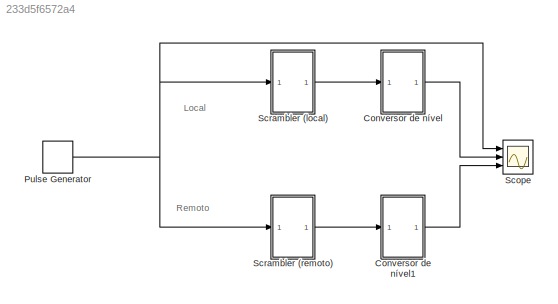
MODEL slx_233d5f6572a4
KIND model
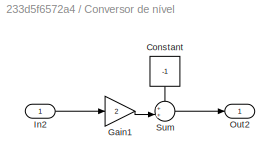
BLOCK [SubSystem] Conversor de nível
  FunctionWithSeparateData = off
  MaskHideContents = off
  MinAlgLoopOccurrences = off
  Opaque = off
  Ports = [1, 1]
  PropExecContextOutsideSubsystem = off
  RTWSystemCode = Auto
  RequestExecContextInheritance = off
BLOCK [Constant] Conversor de nível/Constant
  Value = -1
BLOCK [Gain] Conversor de nível/Gain1
  Gain = 2
  OutDataTypeStr = Inherit: Inherit via internal rule
  ParamDataTypeStr = Inherit: Inherit via internal rule
  SaturateOnIntegerOverflow = off
BLOCK [Inport] Conversor de nível/In2
  IconDisplay = Port number
BLOCK [Outport] Conversor de nível/Out2
  IconDisplay = Port number
BLOCK [Sum] Conversor de nível/Sum
  IconShape = round
  InputSameDT = off
  Inputs = ++|
  OutDataTypeStr = Inherit: Inherit via internal rule
  Ports = [2, 1]
  SaturateOnIntegerOverflow = off
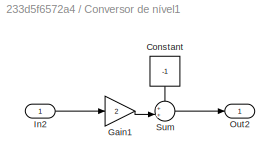
BLOCK [SubSystem] Conversor de nível1
  FunctionWithSeparateData = off
  MaskHideContents = off
  MinAlgLoopOccurrences = off
  Opaque = off
  Ports = [1, 1]
  PropExecContextOutsideSubsystem = off
  RTWSystemCode = Auto
  RequestExecContextInheritance = off
BLOCK [Constant] Conversor de nível1/Constant
  Value = -1
BLOCK [Gain] Conversor de nível1/Gain1
  Gain = 2
  OutDataTypeStr = Inherit: Inherit via internal rule
  ParamDataTypeStr = Inherit: Inherit via internal rule
  SaturateOnIntegerOverflow = off
BLOCK [Inport] Conversor de nível1/In2
  IconDisplay = Port number
BLOCK [Outport] Conversor de nível1/Out2
  IconDisplay = Port number
BLOCK [Sum] Conversor de nível1/Sum
  IconShape = round
  InputSameDT = off
  Inputs = ++|
  OutDataTypeStr = Inherit: Inherit via internal rule
  Ports = [2, 1]
  SaturateOnIntegerOverflow = off
BLOCK [DiscretePulseGenerator] Pulse Generator
  Period = 2*T
  Ports = [0, 1]
  PulseType = Time based
  PulseWidth = 50
  SampleTime = St
BLOCK [Scope] Scope
  DataFormat = StructureWithTime
  Floating = off
  NumInputPorts = 3
  Ports = [3]
  SampleTime = 0
  ShowLegends = off
  YMax = 5~5~5
  YMin = -5~-5~-5
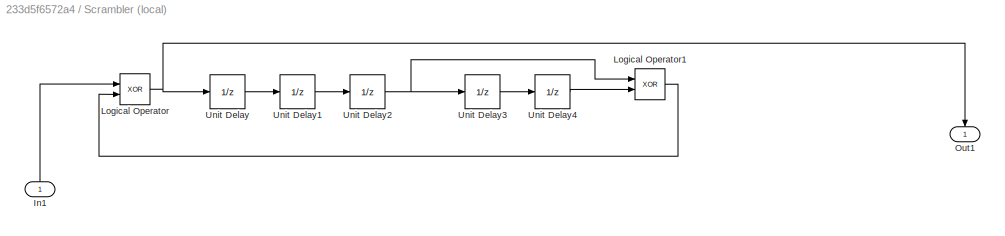
BLOCK [SubSystem] Scrambler (local)
  FunctionWithSeparateData = off
  MaskHideContents = off
  MinAlgLoopOccurrences = off
  Opaque = off
  Ports = [1, 1]
  PropExecContextOutsideSubsystem = off
  RTWSystemCode = Auto
  RequestExecContextInheritance = off
BLOCK [Inport] Scrambler (local)/In1
  IconDisplay = Port number
BLOCK [Logic] Scrambler (local)/Logical Operator
  AllPortsSameDT = off
  Operator = XOR
  OutDataTypeStr = fixdt(1,16)
  Ports = [2, 1]
BLOCK [Logic] Scrambler (local)/Logical Operator1
  AllPortsSameDT = off
  Operator = XOR
  OutDataTypeStr = boolean
  Ports = [2, 1]
BLOCK [Outport] Scrambler (local)/Out1
  IconDisplay = Port number
BLOCK [UnitDelay] Scrambler (local)/Unit Delay
  InputProcessing = Elements as channels (sample based)
  SampleTime = -1
BLOCK [UnitDelay] Scrambler (local)/Unit Delay1
  InputProcessing = Elements as channels (sample based)
  SampleTime = -1
BLOCK [UnitDelay] Scrambler (local)/Unit Delay2
  InputProcessing = Elements as channels (sample based)
  SampleTime = -1
BLOCK [UnitDelay] Scrambler (local)/Unit Delay3
  InputProcessing = Elements as channels (sample based)
  SampleTime = -1
BLOCK [UnitDelay] Scrambler (local)/Unit Delay4
  InputProcessing = Elements as channels (sample based)
  SampleTime = -1
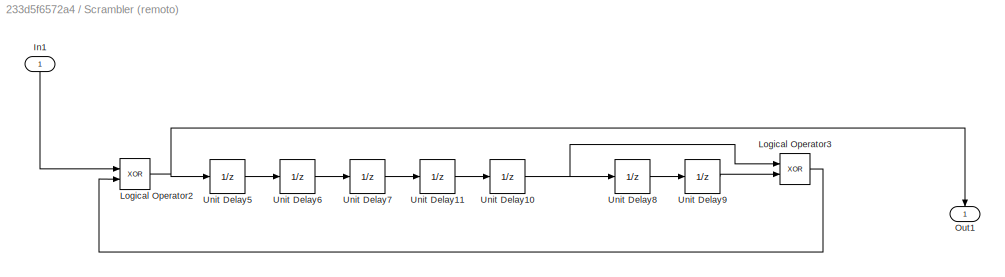
BLOCK [SubSystem] Scrambler (remoto)
  FunctionWithSeparateData = off
  MaskHideContents = off
  MinAlgLoopOccurrences = off
  Opaque = off
  Ports = [1, 1]
  PropExecContextOutsideSubsystem = off
  RTWSystemCode = Auto
  RequestExecContextInheritance = off
BLOCK [Inport] Scrambler (remoto)/In1
  IconDisplay = Port number
BLOCK [Logic] Scrambler (remoto)/Logical Operator2
  AllPortsSameDT = off
  Operator = XOR
  OutDataTypeStr = fixdt(1,16)
  Ports = [2, 1]
BLOCK [Logic] Scrambler (remoto)/Logical Operator3
  AllPortsSameDT = off
  Operator = XOR
  OutDataTypeStr = boolean
  Ports = [2, 1]
BLOCK [Outport] Scrambler (remoto)/Out1
  IconDisplay = Port number
BLOCK [UnitDelay] Scrambler (remoto)/Unit Delay10
  InputProcessing = Elements as channels (sample based)
  SampleTime = -1
BLOCK [UnitDelay] Scrambler (remoto)/Unit Delay11
  InputProcessing = Elements as channels (sample based)
  SampleTime = -1
BLOCK [UnitDelay] Scrambler (remoto)/Unit Delay5
  InputProcessing = Elements as channels (sample based)
  SampleTime = -1
BLOCK [UnitDelay] Scrambler (remoto)/Unit Delay6
  InputProcessing = Elements as channels (sample based)
  SampleTime = -1
BLOCK [UnitDelay] Scrambler (remoto)/Unit Delay7
  InputProcessing = Elements as channels (sample based)
  SampleTime = -1
BLOCK [UnitDelay] Scrambler (remoto)/Unit Delay8
  InputProcessing = Elements as channels (sample based)
  SampleTime = -1
BLOCK [UnitDelay] Scrambler (remoto)/Unit Delay9
  InputProcessing = Elements as channels (sample based)
  SampleTime = -1
ANNOTATION (root): Local
ANNOTATION (root): Remoto
LINE Conversor de nível/Constant:1 -> Conversor de nível/Sum:1
LINE Conversor de nível/Gain1:1 -> Conversor de nível/Sum:2
LINE Conversor de nível/In2:1 -> Conversor de nível/Gain1:1
LINE Conversor de nível/Sum:1 -> Conversor de nível/Out2:1
LINE Conversor de nível1/Constant:1 -> Conversor de nível1/Sum:1
LINE Conversor de nível1/Gain1:1 -> Conversor de nível1/Sum:2
LINE Conversor de nível1/In2:1 -> Conversor de nível1/Gain1:1
LINE Conversor de nível1/Sum:1 -> Conversor de nível1/Out2:1
LINE Conversor de nível1:1 -> Scope:3
LINE Conversor de nível:1 -> Scope:2
NET Pulse Generator:1 -> Scope:1, Scrambler (local):1, Scrambler (remoto):1
LINE Scrambler (local)/In1:1 -> Scrambler (local)/Logical Operator:1
LINE Scrambler (local)/Logical Operator1:1 -> Scrambler (local)/Logical Operator:2
NET Scrambler (local)/Logical Operator:1 -> Scrambler (local)/Out1:1, Scrambler (local)/Unit Delay:1
LINE Scrambler (local)/Unit Delay1:1 -> Scrambler (local)/Unit Delay2:1
NET Scrambler (local)/Unit Delay2:1 -> Scrambler (local)/Logical Operator1:1, Scrambler (local)/Unit Delay3:1
LINE Scrambler (local)/Unit Delay3:1 -> Scrambler (local)/Unit Delay4:1
LINE Scrambler (local)/Unit Delay4:1 -> Scrambler (local)/Logical Operator1:2
LINE Scrambler (local)/Unit Delay:1 -> Scrambler (local)/Unit Delay1:1
LINE Scrambler (local):1 -> Conversor de nível:1
LINE Scrambler (remoto)/In1:1 -> Scrambler (remoto)/Logical Operator2:1
NET Scrambler (remoto)/Logical Operator2:1 -> Scrambler (remoto)/Out1:1, Scrambler (remoto)/Unit Delay5:1
LINE Scrambler (remoto)/Logical Operator3:1 -> Scrambler (remoto)/Logical Operator2:2
NET Scrambler (remoto)/Unit Delay10:1 -> Scrambler (remoto)/Logical Operator3:1, Scrambler (remoto)/Unit Delay8:1
LINE Scrambler (remoto)/Unit Delay11:1 -> Scrambler (remoto)/Unit Delay10:1
LINE Scrambler (remoto)/Unit Delay5:1 -> Scrambler (remoto)/Unit Delay6:1
LINE Scrambler (remoto)/Unit Delay6:1 -> Scrambler (remoto)/Unit Delay7:1
LINE Scrambler (remoto)/Unit Delay7:1 -> Scrambler (remoto)/Unit Delay11:1
LINE Scrambler (remoto)/Unit Delay8:1 -> Scrambler (remoto)/Unit Delay9:1
LINE Scrambler (remoto)/Unit Delay9:1 -> Scrambler (remoto)/Logical Operator3:2
LINE Scrambler (remoto):1 -> Conversor de nível1:1
note: NET lines group one-source signal fan-out (src -> all destinations, sorted); 1:1 wires keep LINE
